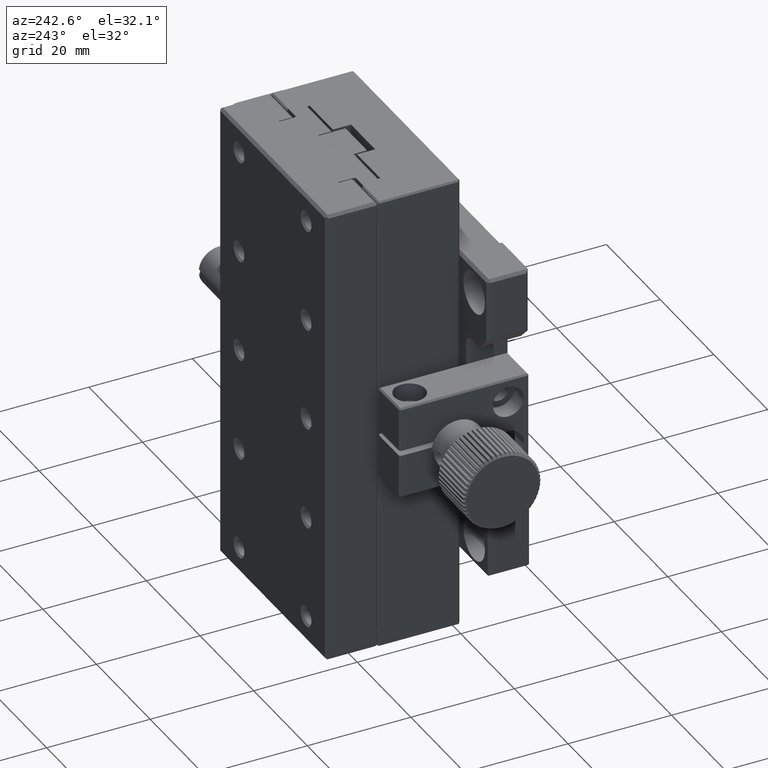
[diagram: clean part render]
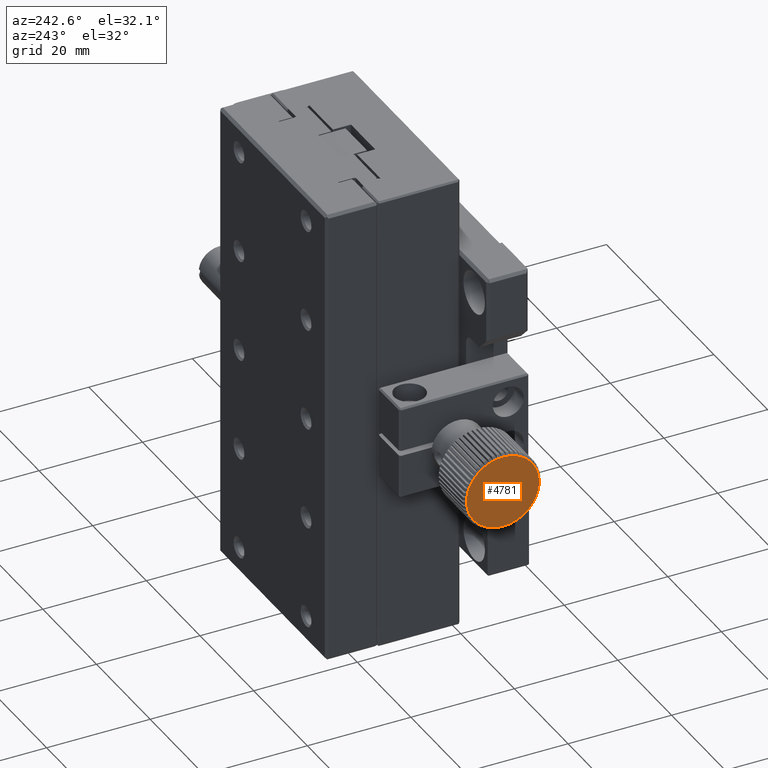
[diagram: same view with one face highlighted and labeled with its STEP entity id]
A machine part, auxiliary view. The second image highlights one B-rep face of the part: STEP entity #4781.
In plain terms, the highlighted conical surface has half-angle 89.998 deg.
Its self-contained STEP definition (entity closure, byte-faithful):
#9 = DIRECTION ( 'NONE',  ( 0.9999988862205456686, -0.001492500475197029632, 0.000000000000000000 ) ) ;
#16 = EDGE_CURVE ( 'NONE', #15482, #8290, #16210, .T. ) ;
#65 = ORIENTED_EDGE ( 'NONE', *, *, #4456, .F. ) ;
#117 = DIRECTION ( 'NONE',  ( 0.9999988862205456686, -0.001492500475197029632, 0.000000000000000000 ) ) ;
#128 = EDGE_CURVE ( 'NONE', #14039, #9805, #8327, .T. ) ;
#141 = EDGE_CURVE ( 'NONE', #13211, #770, #10427, .T. ) ;
#169 = DIRECTION ( 'NONE',  ( 0.9999988862205456686, -0.001492500475197029632, 0.000000000000000000 ) ) ;
#185 = EDGE_CURVE ( 'NONE', #7479, #6734, #709, .T. ) ;
#209 = AXIS2_PLACEMENT_3D ( 'NONE', #13270, #14420, #2027 ) ;
#222 = DIRECTION ( 'NONE',  ( 0.001492500475196587061, 0.9999988862205454465, 0.000000000000000000 ) ) ;
#269 = DIRECTION ( 'NONE',  ( 0.9999988862205456686, -0.001492500475197029632, 0.000000000000000000 ) ) ;
#279 = AXIS2_PLACEMENT_3D ( 'NONE', #1610, #2758, #7689 ) ;
#319 = ORIENTED_EDGE ( 'NONE', *, *, #3128, .F. ) ;
#368 = CARTESIAN_POINT ( 'NONE',  ( -48.99685451504885236, 6.900000337192977895, 0.000000000000000000 ) ) ;
#478 = CIRCLE ( 'NONE', #14368, 6.998222645712131929 ) ;
#513 = AXIS2_PLACEMENT_3D ( 'NONE', #8659, #13674, #2097 ) ;
#567 = CARTESIAN_POINT ( 'NONE',  ( -48.99292905209319571, 9.530122503848854620, -6.485180196275513786 ) ) ;
#592 = EDGE_CURVE ( 'NONE', #921, #6318, #3545, .T. ) ;
#623 = DIRECTION ( 'NONE',  ( 0.001492500475196587061, 0.9999988862205454465, 0.000000000000000000 ) ) ;
#642 = FACE_OUTER_BOUND ( 'NONE', #8218, .T. ) ;
#650 = ORIENTED_EDGE ( 'NONE', *, *, #11101, .F. ) ;
#681 = ORIENTED_EDGE ( 'NONE', *, *, #16, .F. ) ;
#705 = VERTEX_POINT ( 'NONE', #13030 ) ;
#708 = DIRECTION ( 'NONE',  ( 0.9999988862205456686, -0.001492500475197029632, 0.000000000000000000 ) ) ;
#709 = CIRCLE ( 'NONE', #9106, 6.998222645712131929 ) ;
#745 = ORIENTED_EDGE ( 'NONE', *, *, #10515, .F. ) ;
#762 = AXIS2_PLACEMENT_3D ( 'NONE', #13321, #12094, #9641 ) ;
#770 = VERTEX_POINT ( 'NONE', #4877 ) ;
#772 = AXIS2_PLACEMENT_3D ( 'NONE', #7976, #7075, #15672 ) ;
#786 = EDGE_CURVE ( 'NONE', #14590, #7466, #13505, .T. ) ;
#833 = CIRCLE ( 'NONE', #14724, 6.998222645712131929 ) ;
#851 = DIRECTION ( 'NONE',  ( 0.9999988862205456686, -0.001492500475197029632, 0.000000000000000000 ) ) ;
#872 = DIRECTION ( 'NONE',  ( 0.9999988862205456686, -0.001492500475197029632, 0.000000000000000000 ) ) ;
#875 = CARTESIAN_POINT ( 'NONE',  ( -48.98819149655741256, 12.70435952280981873, -3.909534447400888180 ) ) ;
#876 = CARTESIAN_POINT ( 'NONE',  ( -48.99685451504885236, 6.900000337192977895, 0.000000000000000000 ) ) ;
#908 = DIRECTION ( 'NONE',  ( 0.001492500475196587061, 0.9999988862205454465, 0.000000000000000000 ) ) ;
#921 = VERTEX_POINT ( 'NONE', #2654 ) ;
#950 = DIRECTION ( 'NONE',  ( 0.001492500475196587061, 0.9999988862205454465, 0.000000000000000000 ) ) ;
#951 = DIRECTION ( 'NONE',  ( 0.001492500475196587061, 0.9999988862205454465, 0.000000000000000000 ) ) ;
#1073 = CIRCLE ( 'NONE', #9731, 6.998222645712131929 ) ;
#1075 = ORIENTED_EDGE ( 'NONE', *, *, #6583, .F. ) ;
#1083 = ORIENTED_EDGE ( 'NONE', *, *, #5347, .F. ) ;
#1110 = ORIENTED_EDGE ( 'NONE', *, *, #3568, .F. ) ;
#1128 = VERTEX_POINT ( 'NONE', #3428 ) ;
#1153 = VERTEX_POINT ( 'NONE', #12110 ) ;
#1253 = CARTESIAN_POINT ( 'NONE',  ( -48.99076538147249948, 10.97981598589749908, -5.685964069003261123 ) ) ;
#1267 = EDGE_CURVE ( 'NONE', #11661, #14039, #14392, .T. ) ;
#1292 = EDGE_CURVE ( 'NONE', #1505, #1353, #11256, .T. ) ;
#1300 = AXIS2_PLACEMENT_3D ( 'NONE', #13942, #6564, #222 ) ;
#1353 = VERTEX_POINT ( 'NONE', #15763 ) ;
#1364 = DIRECTION ( 'NONE',  ( 0.001492500475196587061, 0.9999988862205454465, 0.000000000000000000 ) ) ;
#1366 = CARTESIAN_POINT ( 'NONE',  ( -48.99778197491155396, 6.278587583815330220, -6.970578564847825120 ) ) ;
#1390 = ORIENTED_EDGE ( 'NONE', *, *, #13051, .F. ) ;
#1413 = VERTEX_POINT ( 'NONE', #7398 ) ;
#1421 = DIRECTION ( 'NONE',  ( 0.001492500475196587061, 0.9999988862205454465, 0.000000000000000000 ) ) ;
#1487 = EDGE_CURVE ( 'NONE', #7227, #11522, #16237, .T. ) ;
#1500 = DIRECTION ( 'NONE',  ( 0.001492500475196587061, 0.9999988862205454465, 0.000000000000000000 ) ) ;
#1505 = VERTEX_POINT ( 'NONE', #2617 ) ;
#1510 = AXIS2_PLACEMENT_3D ( 'NONE', #15781, #4157, #14531 ) ;
#1513 = ORIENTED_EDGE ( 'NONE', *, *, #1267, .F. ) ;
#1566 = DIRECTION ( 'NONE',  ( 0.9999988862205456686, -0.001492500475197029632, 0.000000000000000000 ) ) ;
#1573 = VERTEX_POINT ( 'NONE', #5018 ) ;
#1600 = CIRCLE ( 'NONE', #279, 6.998222645712131929 ) ;
#1610 = CARTESIAN_POINT ( 'NONE',  ( -48.99685451504885236, 6.900000337192977895, 0.000000000000000000 ) ) ;
#1637 = DIRECTION ( 'NONE',  ( 0.9999988862205456686, -0.001492500475197029632, 0.000000000000000000 ) ) ;
#1642 = VERTEX_POINT ( 'NONE', #9091 ) ;
#1799 = DIRECTION ( 'NONE',  ( 0.001492500475196587061, 0.9999988862205454465, 0.000000000000000000 ) ) ;
#1914 = EDGE_CURVE ( 'NONE', #705, #7696, #833, .T. ) ;
#2027 = DIRECTION ( 'NONE',  ( 0.001492500475196587061, 0.9999988862205454465, 0.000000000000000000 ) ) ;
#2068 = CARTESIAN_POINT ( 'NONE',  ( -48.99685451504885236, 6.900000337192977895, 0.000000000000000000 ) ) ;
#2097 = DIRECTION ( 'NONE',  ( 0.001492500475196587061, 0.9999988862205454465, 0.000000000000000000 ) ) ;
#2164 = VERTEX_POINT ( 'NONE', #6787 ) ;
#2212 = DIRECTION ( 'NONE',  ( 0.001492500475196587061, 0.9999988862205454465, 0.000000000000000000 ) ) ;
#2267 = DIRECTION ( 'NONE',  ( 0.9999988862205456686, -0.001492500475197029632, 0.000000000000000000 ) ) ;
#2284 = CARTESIAN_POINT ( 'NONE',  ( -48.98980441842408595, 11.62367640274931979, -5.163521562149798072 ) ) ;
#2366 = CIRCLE ( 'NONE', #8402, 6.998222645712131929 ) ;
#2424 = CARTESIAN_POINT ( 'NONE',  ( -49.00434877117049837, 1.878730395076045223, 4.874619185482730543 ) ) ;
#2444 = VERTEX_POINT ( 'NONE', #1253 ) ;
#2493 = CARTESIAN_POINT ( 'NONE',  ( -48.99685451504885236, 6.900000337192977895, 0.000000000000000000 ) ) ;
#2571 = CARTESIAN_POINT ( 'NONE',  ( -48.98706330671605969, 13.46026453158199665, -2.436792570370925670 ) ) ;
#2574 = DIRECTION ( 'NONE',  ( 0.9999988862205456686, -0.001492500475197029632, 0.000000000000000000 ) ) ;
#2595 = DIRECTION ( 'NONE',  ( 0.9999988862205456686, -0.001492500475197029632, 0.000000000000000000 ) ) ;
#2603 = AXIS2_PLACEMENT_3D ( 'NONE', #7249, #5932, #11089 ) ;
#2617 = CARTESIAN_POINT ( 'NONE',  ( -49.00343568845522668, 2.490510232656525602, -5.434286881009305681 ) ) ;
#2624 = CARTESIAN_POINT ( 'NONE',  ( -49.00728102171373735, -0.08592377159287456490, -0.4145791036720473111 ) ) ;
#2654 = CARTESIAN_POINT ( 'NONE',  ( -49.00515665095743856, 1.337438180723560910, -4.246522521889152912 ) ) ;
#2658 = CARTESIAN_POINT ( 'NONE',  ( -49.00728102171373735, -0.08592377159287976907, 0.4145791036719498335 ) ) ;
#2696 = DIRECTION ( 'NONE',  ( 0.9999988862205456686, -0.001492500475197029632, 0.000000000000000000 ) ) ;
#2732 = DIRECTION ( 'NONE',  ( 0.001492500475196587061, 0.9999988862205454465, 0.000000000000000000 ) ) ;
#2749 = AXIS2_PLACEMENT_3D ( 'NONE', #14001, #7869, #15313 ) ;
#2758 = DIRECTION ( 'NONE',  ( 0.9999988862205456686, -0.001492500475197029632, 0.000000000000000000 ) ) ;
#2770 = VERTEX_POINT ( 'NONE', #6256 ) ;
#2858 = AXIS2_PLACEMENT_3D ( 'NONE', #8949, #7409, #11326 ) ;
#2870 = CIRCLE ( 'NONE', #15442, 6.998222645712131929 ) ;
#2879 = CIRCLE ( 'NONE', #12031, 6.998222645712131929 ) ;
#2907 = ORIENTED_EDGE ( 'NONE', *, *, #5150, .F. ) ;
#2934 = EDGE_CURVE ( 'NONE', #6734, #7780, #10146, .T. ) ;
#2959 = DIRECTION ( 'NONE',  ( 0.001492500475196587061, 0.9999988862205454465, 0.000000000000000000 ) ) ;
#2974 = DIRECTION ( 'NONE',  ( 0.001492500475196587061, 0.9999988862205454465, 0.000000000000000000 ) ) ;
#3079 = DIRECTION ( 'NONE',  ( 0.9999988862205456686, -0.001492500475197029632, 0.000000000000000000 ) ) ;
#3097 = CARTESIAN_POINT ( 'NONE',  ( -48.99685451504885236, 6.900000337192977895, 0.000000000000000000 ) ) ;
#3098 = AXIS2_PLACEMENT_3D ( 'NONE', #15106, #9, #8788 ) ;
#3128 = EDGE_CURVE ( 'NONE', #6141, #7843, #14171, .T. ) ;
#3129 = AXIS2_PLACEMENT_3D ( 'NONE', #12154, #10772, #908 ) ;
#3158 = AXIS2_PLACEMENT_3D ( 'NONE', #2068, #9791, #12326 ) ;
#3159 = CIRCLE ( 'NONE', #5786, 6.998222645712131929 ) ;
#3311 = AXIS2_PLACEMENT_3D ( 'NONE', #8521, #11212, #13766 ) ;
#3313 = CARTESIAN_POINT ( 'NONE',  ( -49.00515665095743856, 1.337438180723502068, 4.246522521889074753 ) ) ;
#3382 = DIRECTION ( 'NONE',  ( 0.9999988862205456686, -0.001492500475197029632, 0.000000000000000000 ) ) ;
#3383 = ORIENTED_EDGE ( 'NONE', *, *, #11600, .F. ) ;
#3404 = CIRCLE ( 'NONE', #9155, 6.998222645712131929 ) ;
#3428 = CARTESIAN_POINT ( 'NONE',  ( -49.00134648184532438, 3.890311651621790823, 6.317980218166024287 ) ) ;
#3442 = CIRCLE ( 'NONE', #3966, 6.998222645712131929 ) ;
#3520 = CARTESIAN_POINT ( 'NONE',  ( -48.99685451504885236, 6.900000337192977895, 0.000000000000000000 ) ) ;
#3524 = VERTEX_POINT ( 'NONE', #2424 ) ;
#3545 = CIRCLE ( 'NONE', #2749, 6.998222645712131929 ) ;
#3559 = EDGE_CURVE ( 'NONE', #6116, #10696, #4243, .T. ) ;
#3568 = EDGE_CURVE ( 'NONE', #7466, #8643, #6338, .T. ) ;
#3810 = CARTESIAN_POINT ( 'NONE',  ( -48.99685451504885236, 6.900000337192977895, 0.000000000000000000 ) ) ;
#3845 = AXIS2_PLACEMENT_3D ( 'NONE', #15872, #5878, #5955 ) ;
#3895 = VERTEX_POINT ( 'NONE', #14621 ) ;
#3904 = CIRCLE ( 'NONE', #3129, 6.998222645712131929 ) ;
#3915 = CIRCLE ( 'NONE', #7328, 6.998222645712131929 ) ;
#3942 = CARTESIAN_POINT ( 'NONE',  ( -48.99076538147249948, 10.97981598589741914, 5.685964069003318855 ) ) ;
#3966 = AXIS2_PLACEMENT_3D ( 'NONE', #368, #2595, #1364 ) ;
#4020 = CARTESIAN_POINT ( 'NONE',  ( -48.99685451504885236, 6.900000337192977895, 0.000000000000000000 ) ) ;
#4032 = CARTESIAN_POINT ( 'NONE',  ( -48.99685451504885236, 6.900000337192977895, 0.000000000000000000 ) ) ;
#4157 = DIRECTION ( 'NONE',  ( 0.9999988862205456686, -0.001492500475197029632, 0.000000000000000000 ) ) ;
#4184 = CARTESIAN_POINT ( 'NONE',  ( -48.99654499936624319, 7.107380732052322792, 6.995149281822807374 ) ) ;
#4236 = CARTESIAN_POINT ( 'NONE',  ( -48.99685451504885236, 6.900000337192977895, 0.000000000000000000 ) ) ;
#4243 = CIRCLE ( 'NONE', #7646, 6.998222645712131929 ) ;
#4245 = DIRECTION ( 'NONE',  ( 0.001492500475196587061, 0.9999988862205454465, 0.000000000000000000 ) ) ;
#4301 = EDGE_CURVE ( 'NONE', #14040, #705, #11549, .T. ) ;
#4382 = DIRECTION ( 'NONE',  ( 0.9999988862205456686, -0.001492500475197029632, 0.000000000000000000 ) ) ;
#4395 = ORIENTED_EDGE ( 'NONE', *, *, #1292, .F. ) ;
#4456 = EDGE_CURVE ( 'NONE', #2164, #921, #5679, .T. ) ;
#4469 = DIRECTION ( 'NONE',  ( 0.001492500475196587061, 0.9999988862205454465, 0.000000000000000000 ) ) ;
#4524 = VERTEX_POINT ( 'NONE', #10269 ) ;
#4587 = DIRECTION ( 'NONE',  ( 0.001492500475196587061, 0.9999988862205454465, 0.000000000000000000 ) ) ;
#4686 = CIRCLE ( 'NONE', #1510, 6.998222645712131929 ) ;
#4716 = AXIS2_PLACEMENT_3D ( 'NONE', #14859, #13554, #12403 ) ;
#4724 = AXIS2_PLACEMENT_3D ( 'NONE', #12046, #9434, #7144 ) ;
#4727 = ORIENTED_EDGE ( 'NONE', *, *, #12715, .F. ) ;
#4781 = ADVANCED_FACE ( 'NONE', ( #642 ), #9072, .F. ) ;
#4804 = CARTESIAN_POINT ( 'NONE',  ( -49.00684398046651324, 0.2069007652927227214, 2.043878306105196607 ) ) ;
#4877 = CARTESIAN_POINT ( 'NONE',  ( -49.00584798695473410, 0.8742321457611661462, 3.558813990580264264 ) ) ;
#4899 = ORIENTED_EDGE ( 'NONE', *, *, #6984, .F. ) ;
#4974 = CIRCLE ( 'NONE', #10731, 6.998222645712131929 ) ;
#5018 = CARTESIAN_POINT ( 'NONE',  ( -48.98648297582827382, 13.84909539031092152, -0.8277019831219895041 ) ) ;
#5024 = CARTESIAN_POINT ( 'NONE',  ( -48.99685451504885236, 6.900000337192977895, 0.000000000000000000 ) ) ;
#5030 = CIRCLE ( 'NONE', #14180, 6.998222645712131929 ) ;
#5052 = ORIENTED_EDGE ( 'NONE', *, *, #2934, .F. ) ;
#5100 = CARTESIAN_POINT ( 'NONE',  ( -48.99685451504885236, 6.900000337192977895, 0.000000000000000000 ) ) ;
#5150 = EDGE_CURVE ( 'NONE', #8290, #5979, #7261, .T. ) ;
#5171 = CIRCLE ( 'NONE', #10144, 6.998222645712131929 ) ;
#5239 = CARTESIAN_POINT ( 'NONE',  ( -48.98756217962659321, 13.12601180389945910, -3.195593069822867172 ) ) ;
#5347 = EDGE_CURVE ( 'NONE', #8071, #3524, #12759, .T. ) ;
#5368 = VERTEX_POINT ( 'NONE', #2658 ) ;
#5413 = ORIENTED_EDGE ( 'NONE', *, *, #13253, .F. ) ;
#5442 = DIRECTION ( 'NONE',  ( 0.001492500475196587061, 0.9999988862205454465, 0.000000000000000000 ) ) ;
#5505 = CIRCLE ( 'NONE', #2603, 6.998222645712131929 ) ;
#5509 = CIRCLE ( 'NONE', #6282, 6.998222645712131929 ) ;
#5587 = CARTESIAN_POINT ( 'NONE',  ( -49.00019968583191599, 4.658683089487006157, 6.629600742422299575 ) ) ;
#5589 = CARTESIAN_POINT ( 'NONE',  ( -48.99685451504885236, 6.900000337192977895, 0.000000000000000000 ) ) ;
#5614 = CARTESIAN_POINT ( 'NONE',  ( -48.99410138647279211, 8.744639957372594807, 6.750734574170784263 ) ) ;
#5633 = ORIENTED_EDGE ( 'NONE', *, *, #11137, .F. ) ;
#5679 = CIRCLE ( 'NONE', #11155, 6.998222645712131929 ) ;
#5724 = EDGE_CURVE ( 'NONE', #12619, #6116, #6222, .T. ) ;
#5732 = CIRCLE ( 'NONE', #7046, 6.998222645712131929 ) ;
#5775 = VERTEX_POINT ( 'NONE', #12324 ) ;
#5786 = AXIS2_PLACEMENT_3D ( 'NONE', #11632, #6568, #8848 ) ;
#5878 = DIRECTION ( 'NONE',  ( 0.9999988862205456686, -0.001492500475197029632, 0.000000000000000000 ) ) ;
#5898 = VERTEX_POINT ( 'NONE', #15081 ) ;
#5924 = ORIENTED_EDGE ( 'NONE', *, *, #786, .F. ) ;
#5932 = DIRECTION ( 'NONE',  ( 0.9999988862205456686, -0.001492500475197029632, 0.000000000000000000 ) ) ;
#5952 = CARTESIAN_POINT ( 'NONE',  ( -48.99685451504885236, 6.900000337192977895, 0.000000000000000000 ) ) ;
#5955 = DIRECTION ( 'NONE',  ( 0.001492500475196587061, 0.9999988862205454465, 0.000000000000000000 ) ) ;
#5961 = CARTESIAN_POINT ( 'NONE',  ( -48.99778197491154685, 6.278587583815234296, 6.970578564847816239 ) ) ;
#5962 = DIRECTION ( 'NONE',  ( 0.9999988862205456686, -0.001492500475197029632, 0.000000000000000000 ) ) ;
#5979 = VERTEX_POINT ( 'NONE', #3942 ) ;
#6040 = CIRCLE ( 'NONE', #11831, 6.998222645712131929 ) ;
#6116 = VERTEX_POINT ( 'NONE', #10738 ) ;
#6141 = VERTEX_POINT ( 'NONE', #4184 ) ;
#6206 = AXIS2_PLACEMENT_3D ( 'NONE', #3810, #708, #2732 ) ;
#6222 = CIRCLE ( 'NONE', #15382, 6.998222645712131929 ) ;
#6256 = CARTESIAN_POINT ( 'NONE',  ( -48.99531236874265971, 7.933262714129016402, 6.921523436437340138 ) ) ;
#6282 = AXIS2_PLACEMENT_3D ( 'NONE', #4236, #9144, #8086 ) ;
#6281 = CARTESIAN_POINT ( 'NONE',  ( -49.00713465641533872, 0.01214328955998628112, -1.237917529169091369 ) ) ;
#6318 = VERTEX_POINT ( 'NONE', #11203 ) ;
#6324 = CARTESIAN_POINT ( 'NONE',  ( -48.99685451504885236, 6.900000337192977895, 0.000000000000000000 ) ) ;
#6338 = CIRCLE ( 'NONE', #10530, 6.998222645712131929 ) ;
#6349 = CARTESIAN_POINT ( 'NONE',  ( -48.98980441842408595, 11.62367640274924518, 5.163521562149864685 ) ) ;
#6564 = DIRECTION ( 'NONE',  ( 0.9999988862205456686, -0.001492500475197029632, 0.000000000000000000 ) ) ;
#6568 = DIRECTION ( 'NONE',  ( 0.9999988862205456686, -0.001492500475197029632, 0.000000000000000000 ) ) ;
#6583 = EDGE_CURVE ( 'NONE', #11522, #2444, #12482, .T. ) ;
#6699 = DIRECTION ( 'NONE',  ( 0.9999988862205456686, -0.001492500475197029632, 0.000000000000000000 ) ) ;
#6734 = VERTEX_POINT ( 'NONE', #2571 ) ;
#6736 = DIRECTION ( 'NONE',  ( 0.001492500475196587061, 0.9999988862205454465, 0.000000000000000000 ) ) ;
#6779 = AXIS2_PLACEMENT_3D ( 'NONE', #7219, #14580, #15826 ) ;
#6780 = CARTESIAN_POINT ( 'NONE',  ( -48.98894242327828152, 12.20122676206629819, 4.568594531142680992 ) ) ;
#6783 = AXIS2_PLACEMENT_3D ( 'NONE', #13354, #12119, #950 ) ;
#6787 = CARTESIAN_POINT ( 'NONE',  ( -49.00584798695473410, 0.8742321457612181046, -3.558813990580347753 ) ) ;
#6878 = CARTESIAN_POINT ( 'NONE',  ( -49.00641307432040605, 0.4956146875597991497, -2.821147511860271795 ) ) ;
#6883 = DIRECTION ( 'NONE',  ( 0.9999988862205456686, -0.001492500475197029632, 0.000000000000000000 ) ) ;
#6885 = ORIENTED_EDGE ( 'NONE', *, *, #13176, .F. ) ;
#6892 = DIRECTION ( 'NONE',  ( 0.9999988862205456686, -0.001492500475197029632, 0.000000000000000000 ) ) ;
#6984 = EDGE_CURVE ( 'NONE', #1128, #14822, #10882, .T. ) ;
#7046 = AXIS2_PLACEMENT_3D ( 'NONE', #15522, #15438, #14360 ) ;
#7056 = CARTESIAN_POINT ( 'NONE',  ( -48.99181182260876710, 10.27868390040397806, 6.128588104114919943 ) ) ;
#7075 = DIRECTION ( 'NONE',  ( 0.9999988862205456686, -0.001492500475197029632, 0.000000000000000000 ) ) ;
#7133 = ORIENTED_EDGE ( 'NONE', *, *, #8802, .F. ) ;
#7144 = DIRECTION ( 'NONE',  ( 0.001492500475196587061, 0.9999988862205454465, 0.000000000000000000 ) ) ;
#7219 = CARTESIAN_POINT ( 'NONE',  ( -48.99685451504885236, 6.900000337192977895, 0.000000000000000000 ) ) ;
#7227 = VERTEX_POINT ( 'NONE', #567 ) ;
#7231 = EDGE_CURVE ( 'NONE', #5368, #13831, #5171, .T. ) ;
#7249 = CARTESIAN_POINT ( 'NONE',  ( -48.99685451504885236, 6.900000337192977895, 0.000000000000000000 ) ) ;
#7261 = CIRCLE ( 'NONE', #14847, 6.998222645712131929 ) ;
#7315 = DIRECTION ( 'NONE',  ( 0.9999988862205456686, -0.001492500475197029632, 0.000000000000000000 ) ) ;
#7328 = AXIS2_PLACEMENT_3D ( 'NONE', #8328, #6699, #4245 ) ;
#7398 = CARTESIAN_POINT ( 'NONE',  ( -48.98756217962659321, 13.12601180389941824, 3.195593069822951993 ) ) ;
#7409 = DIRECTION ( 'NONE',  ( 0.9999988862205456686, -0.001492500475197029632, 0.000000000000000000 ) ) ;
#7466 = VERTEX_POINT ( 'NONE', #1366 ) ;
#7479 = VERTEX_POINT ( 'NONE', #5239 ) ;
#7575 = CARTESIAN_POINT ( 'NONE',  ( -48.99685451504885236, 6.900000337192977895, 0.000000000000000000 ) ) ;
#7646 = AXIS2_PLACEMENT_3D ( 'NONE', #2493, #2574, #1421 ) ;
#7689 = DIRECTION ( 'NONE',  ( 0.001492500475196587061, 0.9999988862205454465, 0.000000000000000000 ) ) ;
#7696 = VERTEX_POINT ( 'NONE', #6878 ) ;
#7705 = EDGE_CURVE ( 'NONE', #770, #5775, #13606, .T. ) ;
#7780 = VERTEX_POINT ( 'NONE', #9891 ) ;
#7836 = CARTESIAN_POINT ( 'NONE',  ( -48.99685451504885236, 6.900000337192977895, 0.000000000000000000 ) ) ;
#7843 = VERTEX_POINT ( 'NONE', #5961 ) ;
#7869 = DIRECTION ( 'NONE',  ( 0.9999988862205456686, -0.001492500475197029632, 0.000000000000000000 ) ) ;
#7970 = ORIENTED_EDGE ( 'NONE', *, *, #5724, .F. ) ;
#7976 = CARTESIAN_POINT ( 'NONE',  ( -48.99685451504885236, 6.900000337192977895, 0.000000000000000000 ) ) ;
#7978 = CARTESIAN_POINT ( 'NONE',  ( -48.99685451504885236, 6.900000337192977895, 0.000000000000000000 ) ) ;
#8047 = CARTESIAN_POINT ( 'NONE',  ( -48.99685451504885236, 6.900000337192977895, 0.000000000000000000 ) ) ;
#8054 = DIRECTION ( 'NONE',  ( 0.9999988862205456686, -0.001492500475197029632, 0.000000000000000000 ) ) ;
#8071 = VERTEX_POINT ( 'NONE', #15465 ) ;
#8086 = DIRECTION ( 'NONE',  ( 0.001492500475196587061, 0.9999988862205454465, 0.000000000000000000 ) ) ;
#8091 = CIRCLE ( 'NONE', #6779, 6.998222645712131929 ) ;
#8146 = DIRECTION ( 'NONE',  ( 0.9999988862205456686, -0.001492500475197029632, 0.000000000000000000 ) ) ;
#8161 = EDGE_CURVE ( 'NONE', #8643, #4524, #2870, .T. ) ;
#8170 = AXIS2_PLACEMENT_3D ( 'NONE', #876, #16064, #11207 ) ;
#8209 = CARTESIAN_POINT ( 'NONE',  ( -48.99685451504885236, 6.900000337192977895, 0.000000000000000000 ) ) ;
#8218 = EDGE_LOOP ( 'NONE', ( #15444, #15295, #8986, #5052, #11601, #10398, #9792, #1513, #7133, #1075, #10184, #5413, #13874, #8569, #1110, #5924, #8393, #650, #6885, #4395, #3383, #13965, #65, #13502, #12460, #12950, #4727, #11937, #8427, #12268, #8582, #10984, #14484, #1390, #1083, #14760, #4899, #11773, #9725, #8685, #319, #11012, #12931, #5633, #11801, #745, #2907, #681, #14975, #9560, #12170, #10484, #7970 ) ) ;
#8290 = VERTEX_POINT ( 'NONE', #6349 ) ;
#8327 = CIRCLE ( 'NONE', #10709, 6.998222645712131929 ) ;
#8328 = CARTESIAN_POINT ( 'NONE',  ( -48.99685451504885236, 6.900000337192977895, 0.000000000000000000 ) ) ;
#8381 = CIRCLE ( 'NONE', #513, 6.998222645712131929 ) ;
#8386 = CARTESIAN_POINT ( 'NONE',  ( -48.99685451504885236, 6.900000337192977895, 0.000000000000000000 ) ) ;
#8393 = ORIENTED_EDGE ( 'NONE', *, *, #15697, .F. ) ;
#8402 = AXIS2_PLACEMENT_3D ( 'NONE', #7978, #1566, #12977 ) ;
#8427 = ORIENTED_EDGE ( 'NONE', *, *, #13123, .F. ) ;
#8454 = EDGE_CURVE ( 'NONE', #7780, #1573, #478, .T. ) ;
#8473 = CARTESIAN_POINT ( 'NONE',  ( -48.99685451504885236, 6.900000337192977895, 0.000000000000000000 ) ) ;
#8521 = CARTESIAN_POINT ( 'NONE',  ( -48.99685451504888078, 6.900000337192977007, 1.566849511305050523E-37 ) ) ;
#8523 = EDGE_CURVE ( 'NONE', #5775, #12703, #12535, .T. ) ;
#8569 = ORIENTED_EDGE ( 'NONE', *, *, #8161, .F. ) ;
#8582 = ORIENTED_EDGE ( 'NONE', *, *, #8523, .F. ) ;
#8643 = VERTEX_POINT ( 'NONE', #12200 ) ;
#8659 = CARTESIAN_POINT ( 'NONE',  ( -48.99685451504885236, 6.900000337192977895, 0.000000000000000000 ) ) ;
#8666 = EDGE_CURVE ( 'NONE', #7696, #2164, #13575, .T. ) ;
#8685 = ORIENTED_EDGE ( 'NONE', *, *, #10409, .F. ) ;
#8709 = DIRECTION ( 'NONE',  ( 0.001492500475196587061, 0.9999988862205454465, 0.000000000000000000 ) ) ;
#8718 = DIRECTION ( 'NONE',  ( 0.001492500475196587061, 0.9999988862205454465, 0.000000000000000000 ) ) ;
#8788 = DIRECTION ( 'NONE',  ( 0.001492500475196587061, 0.9999988862205454465, 0.000000000000000000 ) ) ;
#8802 = EDGE_CURVE ( 'NONE', #2444, #11661, #13849, .T. ) ;
#8840 = CIRCLE ( 'NONE', #3098, 6.998222645712131929 ) ;
#8848 = DIRECTION ( 'NONE',  ( 0.001492500475196587061, 0.9999988862205454465, 0.000000000000000000 ) ) ;
#8901 = EDGE_CURVE ( 'NONE', #1413, #9748, #4686, .T. ) ;
#8949 = CARTESIAN_POINT ( 'NONE',  ( -48.99685451504885236, 6.900000337192977895, 0.000000000000000000 ) ) ;
#8986 = ORIENTED_EDGE ( 'NONE', *, *, #8454, .F. ) ;
#9016 = CARTESIAN_POINT ( 'NONE',  ( -48.99685451504885236, 6.900000337192977895, 0.000000000000000000 ) ) ;
#9072 = CONICAL_SURFACE ( 'NONE', #3311, 6.998222645725268087, 1.570764043616360350 ) ;
#9091 = CARTESIAN_POINT ( 'NONE',  ( -48.99410138647279211, 8.744639957372688954, -6.750734574170758506 ) ) ;
#9106 = AXIS2_PLACEMENT_3D ( 'NONE', #10591, #8054, #2974 ) ;
#9144 = DIRECTION ( 'NONE',  ( 0.9999988862205456686, -0.001492500475197029632, 0.000000000000000000 ) ) ;
#9146 = EDGE_CURVE ( 'NONE', #9256, #12619, #2366, .T. ) ;
#9155 = AXIS2_PLACEMENT_3D ( 'NONE', #9299, #4382, #4469 ) ;
#9256 = VERTEX_POINT ( 'NONE', #15675 ) ;
#9260 = DIRECTION ( 'NONE',  ( 0.001492500475196587061, 0.9999988862205454465, 0.000000000000000000 ) ) ;
#9299 = CARTESIAN_POINT ( 'NONE',  ( -48.99685451504885236, 6.900000337192977895, 0.000000000000000000 ) ) ;
#9434 = DIRECTION ( 'NONE',  ( 0.9999988862205456686, -0.001492500475197029632, 0.000000000000000000 ) ) ;
#9447 = EDGE_CURVE ( 'NONE', #10843, #9616, #3159, .T. ) ;
#9560 = ORIENTED_EDGE ( 'NONE', *, *, #8901, .F. ) ;
#9616 = VERTEX_POINT ( 'NONE', #5587 ) ;
#9641 = DIRECTION ( 'NONE',  ( 0.001492500475196587061, 0.9999988862205454465, 0.000000000000000000 ) ) ;
#9657 = CARTESIAN_POINT ( 'NONE',  ( -48.99685451504885236, 6.900000337192977895, 0.000000000000000000 ) ) ;
#9665 = AXIS2_PLACEMENT_3D ( 'NONE', #10237, #117, #15055 ) ;
#9696 = CIRCLE ( 'NONE', #762, 6.998222645712131929 ) ;
#9700 = CIRCLE ( 'NONE', #11778, 6.998222645712131929 ) ;
#9712 = EDGE_CURVE ( 'NONE', #4524, #1642, #1073, .T. ) ;
#9725 = ORIENTED_EDGE ( 'NONE', *, *, #9447, .F. ) ;
#9731 = AXIS2_PLACEMENT_3D ( 'NONE', #3520, #2267, #15983 ) ;
#9748 = VERTEX_POINT ( 'NONE', #9758 ) ;
#9758 = CARTESIAN_POINT ( 'NONE',  ( -48.98819149655741256, 12.70435952280976188, 3.909534447400971224 ) ) ;
#9791 = DIRECTION ( 'NONE',  ( 0.9999988862205456686, -0.001492500475197029632, 0.000000000000000000 ) ) ;
#9792 = ORIENTED_EDGE ( 'NONE', *, *, #128, .F. ) ;
#9805 = VERTEX_POINT ( 'NONE', #875 ) ;
#9891 = CARTESIAN_POINT ( 'NONE',  ( -48.98670188090792266, 13.70242553025177124, -1.643784844746166707 ) ) ;
#9906 = EDGE_CURVE ( 'NONE', #9748, #15482, #3442, .T. ) ;
#9918 = CIRCLE ( 'NONE', #12797, 6.998222645712131929 ) ;
#9933 = EDGE_CURVE ( 'NONE', #9805, #7479, #1600, .T. ) ;
#10144 = AXIS2_PLACEMENT_3D ( 'NONE', #8209, #14500, #13276 ) ;
#10146 = CIRCLE ( 'NONE', #15906, 6.998222645712131929 ) ;
#10176 = DIRECTION ( 'NONE',  ( 0.001492500475196587061, 0.9999988862205454465, 0.000000000000000000 ) ) ;
#10183 = DIRECTION ( 'NONE',  ( 0.9999988862205456686, -0.001492500475197029632, 0.000000000000000000 ) ) ;
#10184 = ORIENTED_EDGE ( 'NONE', *, *, #1487, .F. ) ;
#10237 = CARTESIAN_POINT ( 'NONE',  ( -48.99685451504885236, 6.900000337192977895, 0.000000000000000000 ) ) ;
#10269 = CARTESIAN_POINT ( 'NONE',  ( -48.99531236874265971, 7.933262714129113213, -6.921523436437328591 ) ) ;
#10398 = ORIENTED_EDGE ( 'NONE', *, *, #9933, .F. ) ;
#10409 = EDGE_CURVE ( 'NONE', #7843, #10843, #6040, .T. ) ;
#10427 = CIRCLE ( 'NONE', #2858, 6.998222645712131929 ) ;
#10473 = CIRCLE ( 'NONE', #4716, 6.998222645712131929 ) ;
#10484 = ORIENTED_EDGE ( 'NONE', *, *, #3559, .F. ) ;
#10486 = CIRCLE ( 'NONE', #3158, 6.998222645712131929 ) ;
#10515 = EDGE_CURVE ( 'NONE', #5979, #10555, #12079, .T. ) ;
#10530 = AXIS2_PLACEMENT_3D ( 'NONE', #12597, #269, #1500 ) ;
#10555 = VERTEX_POINT ( 'NONE', #7056 ) ;
#10582 = EDGE_CURVE ( 'NONE', #1573, #9256, #5030, .T. ) ;
#10591 = CARTESIAN_POINT ( 'NONE',  ( -48.99685451504885236, 6.900000337192977895, 0.000000000000000000 ) ) ;
#10696 = VERTEX_POINT ( 'NONE', #11132 ) ;
#10709 = AXIS2_PLACEMENT_3D ( 'NONE', #5100, #10183, #13635 ) ;
#10731 = AXIS2_PLACEMENT_3D ( 'NONE', #5952, #851, #14633 ) ;
#10738 = CARTESIAN_POINT ( 'NONE',  ( -48.98670188090792266, 13.70242553025174992, 1.643784844746260854 ) ) ;
#10772 = DIRECTION ( 'NONE',  ( 0.9999988862205456686, -0.001492500475197029632, 0.000000000000000000 ) ) ;
#10843 = VERTEX_POINT ( 'NONE', #12866 ) ;
#10882 = CIRCLE ( 'NONE', #13028, 6.998222645712131929 ) ;
#10984 = ORIENTED_EDGE ( 'NONE', *, *, #7705, .F. ) ;
#11012 = ORIENTED_EDGE ( 'NONE', *, *, #14401, .F. ) ;
#11089 = DIRECTION ( 'NONE',  ( 0.001492500475196587061, 0.9999988862205454465, 0.000000000000000000 ) ) ;
#11101 = EDGE_CURVE ( 'NONE', #3895, #16107, #9700, .T. ) ;
#11132 = CARTESIAN_POINT ( 'NONE',  ( -48.98706330671605969, 13.46026453158196112, 2.436792570371015376 ) ) ;
#11137 = EDGE_CURVE ( 'NONE', #5898, #13044, #8381, .T. ) ;
#11155 = AXIS2_PLACEMENT_3D ( 'NONE', #4032, #1637, #6736 ) ;
#11203 = CARTESIAN_POINT ( 'NONE',  ( -49.00434877117050547, 1.878730395076112725, -4.874619185482801598 ) ) ;
#11207 = DIRECTION ( 'NONE',  ( 0.001492500475196587061, 0.9999988862205454465, 0.000000000000000000 ) ) ;
#11212 = DIRECTION ( 'NONE',  ( -0.9999988862205456686, 0.001492500475196760750, -9.249047019859567873E-20 ) ) ;
#11256 = CIRCLE ( 'NONE', #15180, 6.998222645712131929 ) ;
#11326 = DIRECTION ( 'NONE',  ( 0.001492500475196587061, 0.9999988862205454465, 0.000000000000000000 ) ) ;
#11346 = EDGE_CURVE ( 'NONE', #12703, #1153, #5509, .T. ) ;
#11522 = VERTEX_POINT ( 'NONE', #14625 ) ;
#11549 = CIRCLE ( 'NONE', #14437, 6.998222645712131929 ) ;
#11600 = EDGE_CURVE ( 'NONE', #6318, #1505, #2879, .T. ) ;
#11601 = ORIENTED_EDGE ( 'NONE', *, *, #185, .F. ) ;
#11632 = CARTESIAN_POINT ( 'NONE',  ( -48.99685451504885236, 6.900000337192977895, 0.000000000000000000 ) ) ;
#11661 = VERTEX_POINT ( 'NONE', #2284 ) ;
#11773 = ORIENTED_EDGE ( 'NONE', *, *, #11920, .F. ) ;
#11778 = AXIS2_PLACEMENT_3D ( 'NONE', #9657, #5962, #16118 ) ;
#11801 = ORIENTED_EDGE ( 'NONE', *, *, #14583, .F. ) ;
#11824 = DIRECTION ( 'NONE',  ( 0.001492500475196587061, 0.9999988862205454465, 0.000000000000000000 ) ) ;
#11831 = AXIS2_PLACEMENT_3D ( 'NONE', #9016, #12888, #10176 ) ;
#11865 = DIRECTION ( 'NONE',  ( 0.9999988862205456686, -0.001492500475197029632, 0.000000000000000000 ) ) ;
#11920 = EDGE_CURVE ( 'NONE', #9616, #1128, #3904, .T. ) ;
#11937 = ORIENTED_EDGE ( 'NONE', *, *, #7231, .F. ) ;
#12031 = AXIS2_PLACEMENT_3D ( 'NONE', #7575, #169, #8718 ) ;
#12046 = CARTESIAN_POINT ( 'NONE',  ( -48.99685451504885236, 6.900000337192977895, 0.000000000000000000 ) ) ;
#12070 = CARTESIAN_POINT ( 'NONE',  ( -48.99685451504885236, 6.900000337192977895, 0.000000000000000000 ) ) ;
#12079 = CIRCLE ( 'NONE', #4724, 6.998222645712131929 ) ;
#12094 = DIRECTION ( 'NONE',  ( 0.9999988862205456686, -0.001492500475197029632, 0.000000000000000000 ) ) ;
#12110 = CARTESIAN_POINT ( 'NONE',  ( -49.00713465641533872, 0.01214328955996546444, 1.237917529168995889 ) ) ;
#12119 = DIRECTION ( 'NONE',  ( 0.9999988862205456686, -0.001492500475197029632, 0.000000000000000000 ) ) ;
#12149 = DIRECTION ( 'NONE',  ( 0.001492500475196587061, 0.9999988862205454465, 0.000000000000000000 ) ) ;
#12154 = CARTESIAN_POINT ( 'NONE',  ( -48.99685451504885236, 6.900000337192977895, 0.000000000000000000 ) ) ;
#12170 = ORIENTED_EDGE ( 'NONE', *, *, #12691, .F. ) ;
#12200 = CARTESIAN_POINT ( 'NONE',  ( -48.99654499936624319, 7.107380732052419603, -6.995149281822805598 ) ) ;
#12261 = CARTESIAN_POINT ( 'NONE',  ( -48.98894242327828152, 12.20122676206636214, -4.568594531142604609 ) ) ;
#12268 = ORIENTED_EDGE ( 'NONE', *, *, #11346, .F. ) ;
#12324 = CARTESIAN_POINT ( 'NONE',  ( -49.00641307432040605, 0.4956146875597610135, 2.821147511860181645 ) ) ;
#12326 = DIRECTION ( 'NONE',  ( 0.001492500475196587061, 0.9999988862205454465, 0.000000000000000000 ) ) ;
#12393 = DIRECTION ( 'NONE',  ( 0.001492500475196587061, 0.9999988862205454465, 0.000000000000000000 ) ) ;
#12403 = DIRECTION ( 'NONE',  ( 0.001492500475196587061, 0.9999988862205454465, 0.000000000000000000 ) ) ;
#12460 = ORIENTED_EDGE ( 'NONE', *, *, #1914, .F. ) ;
#12482 = CIRCLE ( 'NONE', #3845, 6.998222645712131929 ) ;
#12535 = CIRCLE ( 'NONE', #209, 6.998222645712131929 ) ;
#12597 = CARTESIAN_POINT ( 'NONE',  ( -48.99685451504885236, 6.900000337192977895, 0.000000000000000000 ) ) ;
#12619 = VERTEX_POINT ( 'NONE', #15716 ) ;
#12691 = EDGE_CURVE ( 'NONE', #10696, #1413, #3915, .T. ) ;
#12703 = VERTEX_POINT ( 'NONE', #4804 ) ;
#12715 = EDGE_CURVE ( 'NONE', #13831, #14040, #4974, .T. ) ;
#12727 = DIRECTION ( 'NONE',  ( 0.9999988862205456686, -0.001492500475197029632, 0.000000000000000000 ) ) ;
#12759 = CIRCLE ( 'NONE', #6206, 6.998222645712131929 ) ;
#12797 = AXIS2_PLACEMENT_3D ( 'NONE', #8047, #13049, #1799 ) ;
#12866 = CARTESIAN_POINT ( 'NONE',  ( -48.99900593095338763, 5.458517708482015784, 6.848156204519014523 ) ) ;
#12888 = DIRECTION ( 'NONE',  ( 0.9999988862205456686, -0.001492500475197029632, 0.000000000000000000 ) ) ;
#12931 = ORIENTED_EDGE ( 'NONE', *, *, #14974, .F. ) ;
#12950 = ORIENTED_EDGE ( 'NONE', *, *, #4301, .F. ) ;
#12975 = CARTESIAN_POINT ( 'NONE',  ( -48.99685451504885236, 6.900000337192977895, 0.000000000000000000 ) ) ;
#12977 = DIRECTION ( 'NONE',  ( 0.001492500475196587061, 0.9999988862205454465, 0.000000000000000000 ) ) ;
#13028 = AXIS2_PLACEMENT_3D ( 'NONE', #5024, #7315, #12393 ) ;
#13030 = CARTESIAN_POINT ( 'NONE',  ( -49.00684398046651324, 0.2069007652927522256, -2.043878306105291198 ) ) ;
#13044 = VERTEX_POINT ( 'NONE', #5614 ) ;
#13049 = DIRECTION ( 'NONE',  ( 0.9999988862205456686, -0.001492500475197029632, 0.000000000000000000 ) ) ;
#13051 = EDGE_CURVE ( 'NONE', #3524, #13211, #3404, .T. ) ;
#13123 = EDGE_CURVE ( 'NONE', #1153, #5368, #10473, .T. ) ;
#13150 = CARTESIAN_POINT ( 'NONE',  ( -48.99900593095338763, 5.458517708482108155, -6.848156204519034063 ) ) ;
#13176 = EDGE_CURVE ( 'NONE', #1353, #3895, #5505, .T. ) ;
#13211 = VERTEX_POINT ( 'NONE', #3313 ) ;
#13253 = EDGE_CURVE ( 'NONE', #1642, #7227, #10486, .T. ) ;
#13270 = CARTESIAN_POINT ( 'NONE',  ( -48.99685451504885236, 6.900000337192977895, 0.000000000000000000 ) ) ;
#13276 = DIRECTION ( 'NONE',  ( 0.001492500475196587061, 0.9999988862205454465, 0.000000000000000000 ) ) ;
#13321 = CARTESIAN_POINT ( 'NONE',  ( -48.99685451504885236, 6.900000337192977895, 0.000000000000000000 ) ) ;
#13354 = CARTESIAN_POINT ( 'NONE',  ( -48.99685451504885236, 6.900000337192977895, 0.000000000000000000 ) ) ;
#13387 = DIRECTION ( 'NONE',  ( 0.9999988862205456686, -0.001492500475197029632, 0.000000000000000000 ) ) ;
#13502 = ORIENTED_EDGE ( 'NONE', *, *, #8666, .F. ) ;
#13505 = CIRCLE ( 'NONE', #15600, 6.998222645712131929 ) ;
#13554 = DIRECTION ( 'NONE',  ( 0.9999988862205456686, -0.001492500475197029632, 0.000000000000000000 ) ) ;
#13575 = CIRCLE ( 'NONE', #6783, 6.998222645712131929 ) ;
#13596 = CARTESIAN_POINT ( 'NONE',  ( -48.99685451504885236, 6.900000337192977895, 0.000000000000000000 ) ) ;
#13606 = CIRCLE ( 'NONE', #13863, 6.998222645712131929 ) ;
#13635 = DIRECTION ( 'NONE',  ( 0.001492500475196587061, 0.9999988862205454465, 0.000000000000000000 ) ) ;
#13674 = DIRECTION ( 'NONE',  ( 0.9999988862205456686, -0.001492500475197029632, 0.000000000000000000 ) ) ;
#13766 = DIRECTION ( 'NONE',  ( -0.001492500475196760100, -0.9999988862205454465, 0.000000000000000000 ) ) ;
#13831 = VERTEX_POINT ( 'NONE', #2624 ) ;
#13849 = CIRCLE ( 'NONE', #9665, 6.998222645712131929 ) ;
#13863 = AXIS2_PLACEMENT_3D ( 'NONE', #3097, #11865, #14482 ) ;
#13874 = ORIENTED_EDGE ( 'NONE', *, *, #9712, .F. ) ;
#13942 = CARTESIAN_POINT ( 'NONE',  ( -48.99685451504885236, 6.900000337192977895, 0.000000000000000000 ) ) ;
#13965 = ORIENTED_EDGE ( 'NONE', *, *, #592, .F. ) ;
#14001 = CARTESIAN_POINT ( 'NONE',  ( -48.99685451504885236, 6.900000337192977895, 0.000000000000000000 ) ) ;
#14034 = CARTESIAN_POINT ( 'NONE',  ( -48.99685451504885236, 6.900000337192977895, 0.000000000000000000 ) ) ;
#14039 = VERTEX_POINT ( 'NONE', #12261 ) ;
#14040 = VERTEX_POINT ( 'NONE', #6281 ) ;
#14171 = CIRCLE ( 'NONE', #8170, 6.998222645712131929 ) ;
#14180 = AXIS2_PLACEMENT_3D ( 'NONE', #5589, #15824, #4587 ) ;
#14268 = CARTESIAN_POINT ( 'NONE',  ( -49.00243022049143349, 3.164189645583032728, 5.917669100830138973 ) ) ;
#14360 = DIRECTION ( 'NONE',  ( 0.001492500475196587061, 0.9999988862205454465, 0.000000000000000000 ) ) ;
#14368 = AXIS2_PLACEMENT_3D ( 'NONE', #6324, #6892, #2959 ) ;
#14392 = CIRCLE ( 'NONE', #772, 6.998222645712131929 ) ;
#14401 = EDGE_CURVE ( 'NONE', #2770, #6141, #8840, .T. ) ;
#14420 = DIRECTION ( 'NONE',  ( 0.9999988862205456686, -0.001492500475197029632, 0.000000000000000000 ) ) ;
#14437 = AXIS2_PLACEMENT_3D ( 'NONE', #8386, #13387, #12149 ) ;
#14482 = DIRECTION ( 'NONE',  ( 0.001492500475196587061, 0.9999988862205454465, 0.000000000000000000 ) ) ;
#14484 = ORIENTED_EDGE ( 'NONE', *, *, #141, .F. ) ;
#14500 = DIRECTION ( 'NONE',  ( 0.9999988862205456686, -0.001492500475197029632, 0.000000000000000000 ) ) ;
#14531 = DIRECTION ( 'NONE',  ( 0.001492500475196587061, 0.9999988862205454465, 0.000000000000000000 ) ) ;
#14580 = DIRECTION ( 'NONE',  ( 0.9999988862205456686, -0.001492500475197029632, 0.000000000000000000 ) ) ;
#14583 = EDGE_CURVE ( 'NONE', #10555, #5898, #5732, .T. ) ;
#14590 = VERTEX_POINT ( 'NONE', #13150 ) ;
#14621 = CARTESIAN_POINT ( 'NONE',  ( -49.00134648184533148, 3.890311651621880973, -6.317980218166069584 ) ) ;
#14625 = CARTESIAN_POINT ( 'NONE',  ( -48.99181182260876710, 10.27868390040406332, -6.128588104114874646 ) ) ;
#14633 = DIRECTION ( 'NONE',  ( 0.001492500475196587061, 0.9999988862205454465, 0.000000000000000000 ) ) ;
#14724 = AXIS2_PLACEMENT_3D ( 'NONE', #13596, #872, #951 ) ;
#14760 = ORIENTED_EDGE ( 'NONE', *, *, #14855, .F. ) ;
#14822 = VERTEX_POINT ( 'NONE', #14268 ) ;
#14847 = AXIS2_PLACEMENT_3D ( 'NONE', #4020, #2696, #9260 ) ;
#14855 = EDGE_CURVE ( 'NONE', #14822, #8071, #9918, .T. ) ;
#14859 = CARTESIAN_POINT ( 'NONE',  ( -48.99685451504885236, 6.900000337192977895, 0.000000000000000000 ) ) ;
#14974 = EDGE_CURVE ( 'NONE', #13044, #2770, #8091, .T. ) ;
#14975 = ORIENTED_EDGE ( 'NONE', *, *, #9906, .F. ) ;
#15055 = DIRECTION ( 'NONE',  ( 0.001492500475196587061, 0.9999988862205454465, 0.000000000000000000 ) ) ;
#15081 = CARTESIAN_POINT ( 'NONE',  ( -48.99292905209319571, 9.530122503848765803, 6.485180196275551090 ) ) ;
#15106 = CARTESIAN_POINT ( 'NONE',  ( -48.99685451504885236, 6.900000337192977895, 0.000000000000000000 ) ) ;
#15180 = AXIS2_PLACEMENT_3D ( 'NONE', #12975, #8146, #11824 ) ;
#15295 = ORIENTED_EDGE ( 'NONE', *, *, #10582, .F. ) ;
#15313 = DIRECTION ( 'NONE',  ( 0.001492500475196587061, 0.9999988862205454465, 0.000000000000000000 ) ) ;
#15382 = AXIS2_PLACEMENT_3D ( 'NONE', #8473, #16172, #8709 ) ;
#15390 = AXIS2_PLACEMENT_3D ( 'NONE', #12070, #3382, #2212 ) ;
#15438 = DIRECTION ( 'NONE',  ( 0.9999988862205456686, -0.001492500475197029632, 0.000000000000000000 ) ) ;
#15442 = AXIS2_PLACEMENT_3D ( 'NONE', #7836, #3079, #15612 ) ;
#15444 = ORIENTED_EDGE ( 'NONE', *, *, #9146, .F. ) ;
#15465 = CARTESIAN_POINT ( 'NONE',  ( -49.00343568845521958, 2.490510232656450995, 5.434286881009243508 ) ) ;
#15482 = VERTEX_POINT ( 'NONE', #6780 ) ;
#15522 = CARTESIAN_POINT ( 'NONE',  ( -48.99685451504885236, 6.900000337192977895, 0.000000000000000000 ) ) ;
#15597 = CARTESIAN_POINT ( 'NONE',  ( -49.00019968583191599, 4.658683089487102968, -6.629600742422332438 ) ) ;
#15600 = AXIS2_PLACEMENT_3D ( 'NONE', #16189, #6883, #623 ) ;
#15612 = DIRECTION ( 'NONE',  ( 0.001492500475196587061, 0.9999988862205454465, 0.000000000000000000 ) ) ;
#15672 = DIRECTION ( 'NONE',  ( 0.001492500475196587061, 0.9999988862205454465, 0.000000000000000000 ) ) ;
#15675 = CARTESIAN_POINT ( 'NONE',  ( -48.98640966442459188, 13.89821518842851056, 0.000000000000000000 ) ) ;
#15697 = EDGE_CURVE ( 'NONE', #16107, #14590, #9696, .T. ) ;
#15716 = CARTESIAN_POINT ( 'NONE',  ( -48.98648297582827382, 13.84909539031090908, 0.8277019831220858714 ) ) ;
#15763 = CARTESIAN_POINT ( 'NONE',  ( -49.00243022049143349, 3.164189645583118438, -5.917669100830191375 ) ) ;
#15781 = CARTESIAN_POINT ( 'NONE',  ( -48.99685451504885236, 6.900000337192977895, 0.000000000000000000 ) ) ;
#15824 = DIRECTION ( 'NONE',  ( 0.9999988862205456686, -0.001492500475197029632, 0.000000000000000000 ) ) ;
#15826 = DIRECTION ( 'NONE',  ( 0.001492500475196587061, 0.9999988862205454465, 0.000000000000000000 ) ) ;
#15872 = CARTESIAN_POINT ( 'NONE',  ( -48.99685451504885236, 6.900000337192977895, 0.000000000000000000 ) ) ;
#15906 = AXIS2_PLACEMENT_3D ( 'NONE', #14034, #12727, #5442 ) ;
#15983 = DIRECTION ( 'NONE',  ( 0.001492500475196587061, 0.9999988862205454465, 0.000000000000000000 ) ) ;
#16064 = DIRECTION ( 'NONE',  ( 0.9999988862205456686, -0.001492500475197029632, 0.000000000000000000 ) ) ;
#16107 = VERTEX_POINT ( 'NONE', #15597 ) ;
#16118 = DIRECTION ( 'NONE',  ( 0.001492500475196587061, 0.9999988862205454465, 0.000000000000000000 ) ) ;
#16172 = DIRECTION ( 'NONE',  ( 0.9999988862205456686, -0.001492500475197029632, 0.000000000000000000 ) ) ;
#16189 = CARTESIAN_POINT ( 'NONE',  ( -48.99685451504885236, 6.900000337192977895, 0.000000000000000000 ) ) ;
#16210 = CIRCLE ( 'NONE', #15390, 6.998222645712131929 ) ;
#16237 = CIRCLE ( 'NONE', #1300, 6.998222645712131929 ) ;